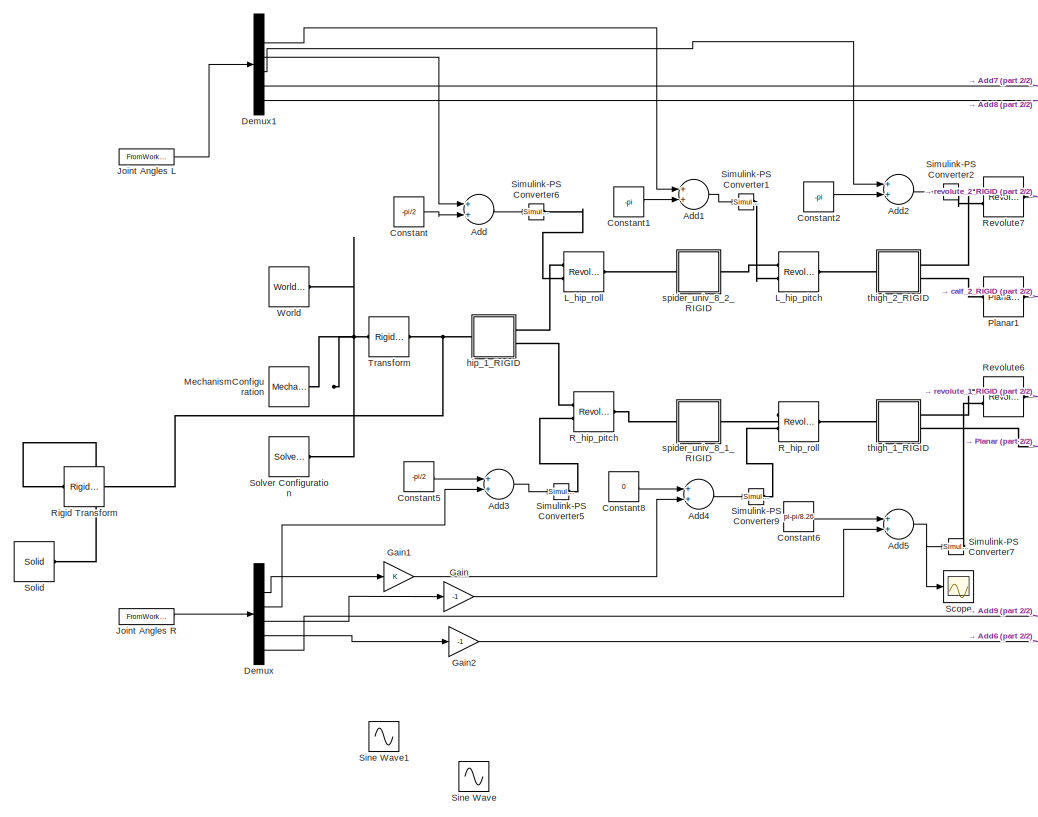
[diagram: root canvas - part 1/2, left side, full height]
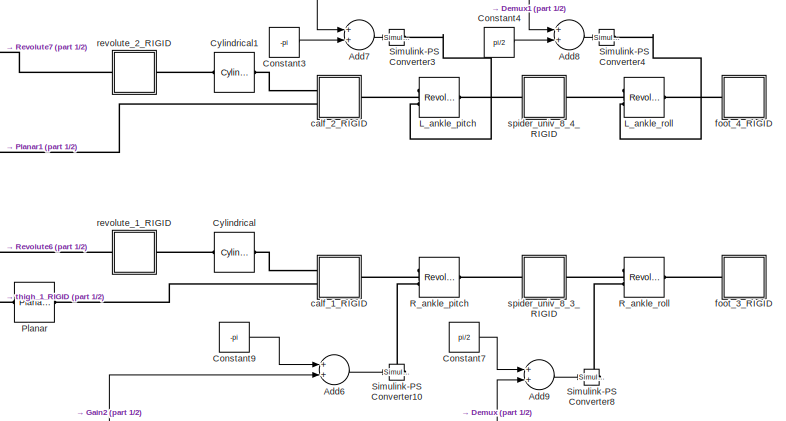
[diagram: root canvas - part 2/2, middle right region]
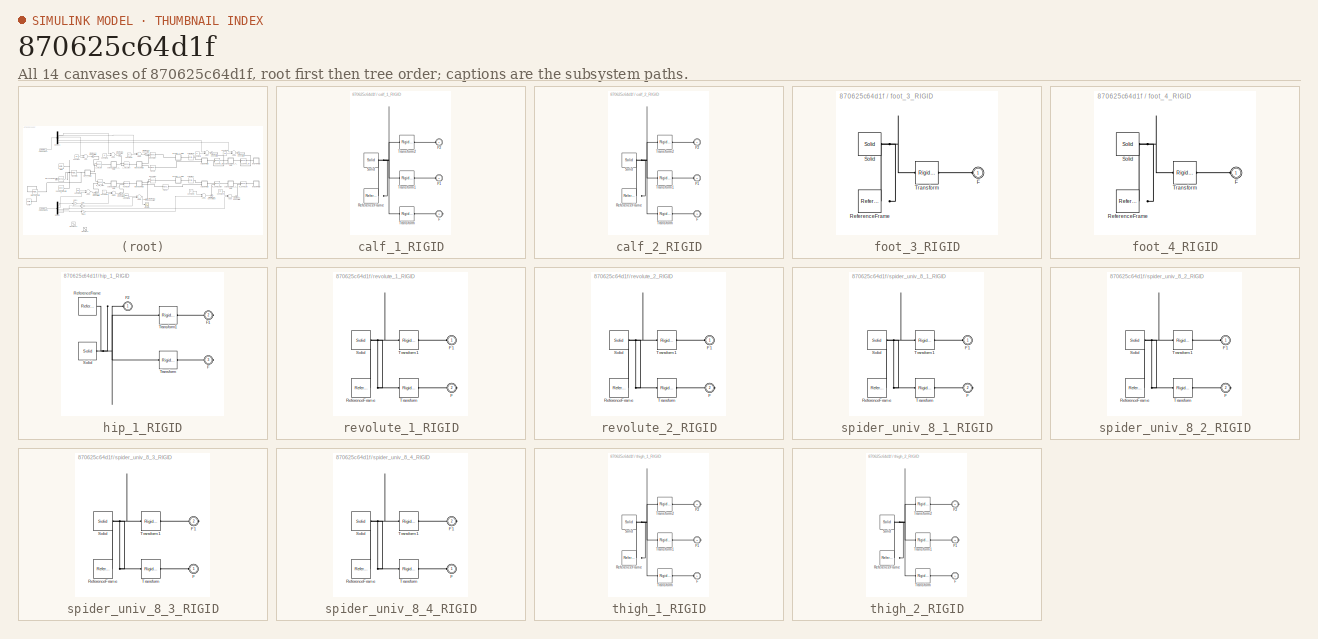
[diagram: thumbnail index - all 14 canvases of the model, root first then tree order]
MODEL slx_870625c64d1f
KIND model
CONFIG AbsTol = auto
CONFIG EnableMultiTasking = off
CONFIG FixedStep = auto
CONFIG MaxStep = auto
CONFIG MinStep = auto
CONFIG RelTol = 1e-3
CONFIG SampleTimeConstraint = Unconstrained
CONFIG Solver = VariableStepAuto
CONFIG SolverName = VariableStepAuto
CONFIG StartTime = 0.0
CONFIG StopTime = 10.0
WORKSPACE source: external: MATLAB File  (data not in archive)
BLOCK [Sum] Add
  InputSameDT = off
  OutDataTypeStr = Inherit: Inherit via internal rule
  Ports = [2, 1]
  SaturateOnIntegerOverflow = off
BLOCK [Sum] Add1
  InputSameDT = off
  OutDataTypeStr = Inherit: Inherit via internal rule
  Ports = [2, 1]
  SaturateOnIntegerOverflow = off
BLOCK [Sum] Add2
  InputSameDT = off
  OutDataTypeStr = Inherit: Inherit via internal rule
  Ports = [2, 1]
  SaturateOnIntegerOverflow = off
BLOCK [Sum] Add3
  InputSameDT = off
  OutDataTypeStr = Inherit: Inherit via internal rule
  Ports = [2, 1]
  SaturateOnIntegerOverflow = off
BLOCK [Sum] Add4
  InputSameDT = off
  OutDataTypeStr = Inherit: Inherit via internal rule
  Ports = [2, 1]
  SaturateOnIntegerOverflow = off
BLOCK [Sum] Add5
  InputSameDT = off
  OutDataTypeStr = Inherit: Inherit via internal rule
  Ports = [2, 1]
  SaturateOnIntegerOverflow = off
BLOCK [Sum] Add6
  InputSameDT = off
  OutDataTypeStr = Inherit: Inherit via internal rule
  Ports = [2, 1]
  SaturateOnIntegerOverflow = off
BLOCK [Sum] Add7
  InputSameDT = off
  OutDataTypeStr = Inherit: Inherit via internal rule
  Ports = [2, 1]
  SaturateOnIntegerOverflow = off
BLOCK [Sum] Add8
  InputSameDT = off
  OutDataTypeStr = Inherit: Inherit via internal rule
  Ports = [2, 1]
  SaturateOnIntegerOverflow = off
BLOCK [Sum] Add9
  InputSameDT = off
  OutDataTypeStr = Inherit: Inherit via internal rule
  Ports = [2, 1]
  SaturateOnIntegerOverflow = off
BLOCK [Constant] Constant
  Value = -pi/2
BLOCK [Constant] Constant1
  Value = -pi
BLOCK [Constant] Constant2
  Value = -pi
BLOCK [Constant] Constant3
  Value = -pi
BLOCK [Constant] Constant4
  Value = pi/2
BLOCK [Constant] Constant5
  Value = -pi/2
BLOCK [Constant] Constant6
  Value = pi-pi/8.26
BLOCK [Constant] Constant7
  Value = pi/2
BLOCK [Constant] Constant8
  Value = 0
BLOCK [Constant] Constant9
  Value = -pi
BLOCK [Reference] Cylindrical  REF=sm_lib/Joints/Cylindrical
Joint
  Ports = [0, 0, 0, 0, 0, 1, 1]
  SourceBlock = sm_lib/Joints/Cylindrical\nJoint
  SourceProductBaseCode = MS
  SourceProductName = Simscape Multibody
  SourceType = Cylindrical\nJoint
BLOCK [Reference] Cylindrical1  REF=sm_lib/Joints/Cylindrical
Joint
  Ports = [0, 0, 0, 0, 0, 1, 1]
  SourceBlock = sm_lib/Joints/Cylindrical\nJoint
  SourceProductBaseCode = MS
  SourceProductName = Simscape Multibody
  SourceType = Cylindrical\nJoint
BLOCK [Demux] Demux
  DisplayOption = bar
  Outputs = 6
  Ports = [1, 6]
BLOCK [Demux] Demux1
  DisplayOption = bar
  Outputs = 6
  Ports = [1, 6]
BLOCK [Gain] Gain
  Gain = -1
  OutDataTypeStr = Inherit: Inherit via internal rule
  ParamDataTypeStr = Inherit: Inherit via internal rule
  SaturateOnIntegerOverflow = off
BLOCK [Gain] Gain1
  OutDataTypeStr = Inherit: Inherit via internal rule
  ParamDataTypeStr = Inherit: Inherit via internal rule
  SaturateOnIntegerOverflow = off
BLOCK [Gain] Gain2
  Gain = -1
  OutDataTypeStr = Inherit: Inherit via internal rule
  ParamDataTypeStr = Inherit: Inherit via internal rule
  SaturateOnIntegerOverflow = off
BLOCK [FromWorkspace] Joint Angles L
  OutputAfterFinalValue = Holding final value
  SampleTime = 0
  VariableName = jAngsL
  ZeroCross = on
BLOCK [FromWorkspace] Joint Angles R
  OutputAfterFinalValue = Holding final value
  SampleTime = 0
  VariableName = jAngsR
  ZeroCross = on
BLOCK [Reference] L_ankle_pitch  REF=sm_lib/Joints/Revolute Joint
  Ports = [0, 0, 0, 0, 0, 2, 1]
  SourceBlock = sm_lib/Joints/Revolute Joint
  SourceProductBaseCode = MS
  SourceProductName = Simscape Multibody
  SourceType = Revolute Joint
BLOCK [Reference] L_ankle_roll  REF=sm_lib/Joints/Revolute Joint
  Ports = [0, 0, 0, 0, 0, 2, 1]
  SourceBlock = sm_lib/Joints/Revolute Joint
  SourceProductBaseCode = MS
  SourceProductName = Simscape Multibody
  SourceType = Revolute Joint
BLOCK [Reference] L_hip_pitch  REF=sm_lib/Joints/Revolute Joint
  Ports = [0, 0, 0, 0, 0, 2, 1]
  SourceBlock = sm_lib/Joints/Revolute Joint
  SourceProductBaseCode = MS
  SourceProductName = Simscape Multibody
  SourceType = Revolute Joint
BLOCK [Reference] L_hip_roll  REF=sm_lib/Joints/Revolute Joint
  Ports = [0, 0, 0, 0, 0, 2, 1]
  SourceBlock = sm_lib/Joints/Revolute Joint
  SourceProductBaseCode = MS
  SourceProductName = Simscape Multibody
  SourceType = Revolute Joint
BLOCK [Reference] MechanismConfiguration  REF=sm_lib/Utilities/Mechanism
Configuration
  Ports = [0, 0, 0, 0, 0, 0, 1]
  SourceBlock = sm_lib/Utilities/Mechanism\nConfiguration
  SourceProductBaseCode = MS
  SourceProductName = Simscape Multibody
  SourceType = Mechanism\nConfiguration
BLOCK [Reference] Planar  REF=sm_lib/Joints/Planar Joint
  Ports = [0, 0, 0, 0, 0, 1, 1]
  SourceBlock = sm_lib/Joints/Planar Joint
  SourceProductBaseCode = MS
  SourceProductName = Simscape Multibody
  SourceType = Planar Joint
BLOCK [Reference] Planar1  REF=sm_lib/Joints/Planar Joint
  Ports = [0, 0, 0, 0, 0, 1, 1]
  SourceBlock = sm_lib/Joints/Planar Joint
  SourceProductBaseCode = MS
  SourceProductName = Simscape Multibody
  SourceType = Planar Joint
BLOCK [Reference] R_ankle_pitch  REF=sm_lib/Joints/Revolute Joint
  Ports = [0, 0, 0, 0, 0, 2, 1]
  SourceBlock = sm_lib/Joints/Revolute Joint
  SourceProductBaseCode = MS
  SourceProductName = Simscape Multibody
  SourceType = Revolute Joint
BLOCK [Reference] R_ankle_roll  REF=sm_lib/Joints/Revolute Joint
  Ports = [0, 0, 0, 0, 0, 2, 1]
  SourceBlock = sm_lib/Joints/Revolute Joint
  SourceProductBaseCode = MS
  SourceProductName = Simscape Multibody
  SourceType = Revolute Joint
BLOCK [Reference] R_hip_pitch  REF=sm_lib/Joints/Revolute Joint
  Ports = [0, 0, 0, 0, 0, 2, 1]
  SourceBlock = sm_lib/Joints/Revolute Joint
  SourceProductBaseCode = MS
  SourceProductName = Simscape Multibody
  SourceType = Revolute Joint
BLOCK [Reference] R_hip_roll  REF=sm_lib/Joints/Revolute Joint
  Ports = [0, 0, 0, 0, 0, 2, 1]
  SourceBlock = sm_lib/Joints/Revolute Joint
  SourceProductBaseCode = MS
  SourceProductName = Simscape Multibody
  SourceType = Revolute Joint
BLOCK [Reference] Revolute6  REF=sm_lib/Joints/Revolute Joint
  Ports = [0, 0, 0, 0, 0, 2, 1]
  SourceBlock = sm_lib/Joints/Revolute Joint
  SourceProductBaseCode = MS
  SourceProductName = Simscape Multibody
  SourceType = Revolute Joint
BLOCK [Reference] Revolute7  REF=sm_lib/Joints/Revolute Joint
  Ports = [0, 0, 0, 0, 0, 2, 1]
  SourceBlock = sm_lib/Joints/Revolute Joint
  SourceProductBaseCode = MS
  SourceProductName = Simscape Multibody
  SourceType = Revolute Joint
BLOCK [Reference] Rigid Transform  REF=sm_lib/Frames and
Transforms/Rigid
Transform
  Ports = [0, 0, 0, 0, 0, 1, 1]
  SourceBlock = sm_lib/Frames and\nTransforms/Rigid\nTransform
  SourceProductBaseCode = MS
  SourceProductName = Simscape Multibody
  SourceType = Rigid\nTransform
BLOCK [Scope] Scope
  Floating = off
  NumInputPorts = 1
  Ports = [1]
  ScopeSpecificationString = Simulink.scopes.TimeScopeBlockCfg('CurrentConfiguration', extmgr.ConfigurationSet(extmgr.Configuration('Core','General UI',true),extmgr.Configuration('Core','Source UI',true),extmgr.Configuration('Sources','WiredSimulink',true),extmgr.Configuration('Visuals','Time Domain',true,'SerializedDisplays',{struct('MinYLimReal','1.1128','MaxYLimReal','2.94442','YLabelReal','','MinYLimMag','1.1128','MaxYLim...<+1350ch>
BLOCK [Reference] Simulink-PS Converter1  REF=nesl_utility/Simulink-PS
Converter
  Ports = [1, 0, 0, 0, 0, 0, 1]
  SourceBlock = nesl_utility/Simulink-PS\nConverter
  SourceProductBaseCode = SS
  SourceProductName = Simscape
  SourceType = Simulink-PS\nConverter
BLOCK [Reference] Simulink-PS Converter10  REF=nesl_utility/Simulink-PS
Converter
  Ports = [1, 0, 0, 0, 0, 0, 1]
  SourceBlock = nesl_utility/Simulink-PS\nConverter
  SourceProductBaseCode = SS
  SourceProductName = Simscape
  SourceType = Simulink-PS\nConverter
BLOCK [Reference] Simulink-PS Converter2  REF=nesl_utility/Simulink-PS
Converter
  Ports = [1, 0, 0, 0, 0, 0, 1]
  SourceBlock = nesl_utility/Simulink-PS\nConverter
  SourceProductBaseCode = SS
  SourceProductName = Simscape
  SourceType = Simulink-PS\nConverter
BLOCK [Reference] Simulink-PS Converter3  REF=nesl_utility/Simulink-PS
Converter
  Ports = [1, 0, 0, 0, 0, 0, 1]
  SourceBlock = nesl_utility/Simulink-PS\nConverter
  SourceProductBaseCode = SS
  SourceProductName = Simscape
  SourceType = Simulink-PS\nConverter
BLOCK [Reference] Simulink-PS Converter4  REF=nesl_utility/Simulink-PS
Converter
  Ports = [1, 0, 0, 0, 0, 0, 1]
  SourceBlock = nesl_utility/Simulink-PS\nConverter
  SourceProductBaseCode = SS
  SourceProductName = Simscape
  SourceType = Simulink-PS\nConverter
BLOCK [Reference] Simulink-PS Converter5  REF=nesl_utility/Simulink-PS
Converter
  Ports = [1, 0, 0, 0, 0, 0, 1]
  SourceBlock = nesl_utility/Simulink-PS\nConverter
  SourceProductBaseCode = SS
  SourceProductName = Simscape
  SourceType = Simulink-PS\nConverter
BLOCK [Reference] Simulink-PS Converter6  REF=nesl_utility/Simulink-PS
Converter
  Ports = [1, 0, 0, 0, 0, 0, 1]
  SourceBlock = nesl_utility/Simulink-PS\nConverter
  SourceProductBaseCode = SS
  SourceProductName = Simscape
  SourceType = Simulink-PS\nConverter
BLOCK [Reference] Simulink-PS Converter7  REF=nesl_utility/Simulink-PS
Converter
  Ports = [1, 0, 0, 0, 0, 0, 1]
  SourceBlock = nesl_utility/Simulink-PS\nConverter
  SourceProductBaseCode = SS
  SourceProductName = Simscape
  SourceType = Simulink-PS\nConverter
BLOCK [Reference] Simulink-PS Converter8  REF=nesl_utility/Simulink-PS
Converter
  Ports = [1, 0, 0, 0, 0, 0, 1]
  SourceBlock = nesl_utility/Simulink-PS\nConverter
  SourceProductBaseCode = SS
  SourceProductName = Simscape
  SourceType = Simulink-PS\nConverter
BLOCK [Reference] Simulink-PS Converter9  REF=nesl_utility/Simulink-PS
Converter
  Ports = [1, 0, 0, 0, 0, 0, 1]
  SourceBlock = nesl_utility/Simulink-PS\nConverter
  SourceProductBaseCode = SS
  SourceProductName = Simscape
  SourceType = Simulink-PS\nConverter
BLOCK [Sin] Sine Wave
  Ports = [0, 1]
  SampleTime = 0
BLOCK [Sin] Sine Wave1
  Phase = pi
  Ports = [0, 1]
  SampleTime = 0
BLOCK [Reference] Solid  REF=sm_lib/Body Elements/Solid
  Ports = [0, 0, 0, 0, 0, 0, 1]
  SourceBlock = sm_lib/Body Elements/Solid
  SourceProductBaseCode = MS
  SourceProductName = Simscape Multibody
  SourceType = Solid
BLOCK [Reference] Solver Configuration  REF=nesl_utility/Solver
Configuration
  Ports = [0, 0, 0, 0, 0, 0, 1]
  SourceBlock = nesl_utility/Solver\nConfiguration
  SourceProductBaseCode = SS
  SourceProductName = Simscape
  SourceType = Solver\nConfiguration
BLOCK [Reference] Transform  REF=sm_lib/Frames and
Transforms/Rigid
Transform
  Ports = [0, 0, 0, 0, 0, 1, 1]
  SourceBlock = sm_lib/Frames and\nTransforms/Rigid\nTransform
  SourceProductBaseCode = MS
  SourceProductName = Simscape Multibody
  SourceType = Rigid\nTransform
BLOCK [Reference] World  REF=sm_lib/Frames and
Transforms/World Frame
  Ports = [0, 0, 0, 0, 0, 0, 1]
  SourceBlock = sm_lib/Frames and\nTransforms/World Frame
  SourceProductBaseCode = MS
  SourceProductName = Simscape Multibody
  SourceType = World Frame
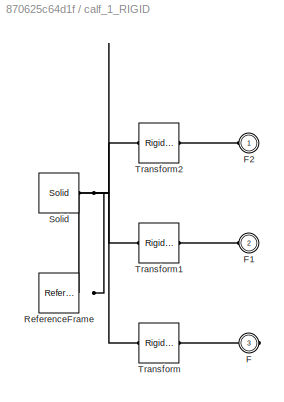
BLOCK [SubSystem] calf_1_RIGID
  Ports = [0, 0, 0, 0, 0, 2, 1]
  RequestExecContextInheritance = off
BLOCK [PMIOPort] calf_1_RIGID/F
  Port = 3
  Side = Right
BLOCK [PMIOPort] calf_1_RIGID/F1
  Port = 2
  Side = Left
BLOCK [PMIOPort] calf_1_RIGID/F2
  Side = Left
BLOCK [Reference] calf_1_RIGID/ReferenceFrame  REF=sm_lib/Frames and
Transforms/Reference
Frame
  Ports = [0, 0, 0, 0, 0, 0, 1]
  SourceBlock = sm_lib/Frames and\nTransforms/Reference\nFrame
  SourceProductBaseCode = MS
  SourceProductName = Simscape Multibody
  SourceType = Reference\nFrame
BLOCK [Reference] calf_1_RIGID/Solid  REF=sm_lib/Body Elements/Solid
  Ports = [0, 0, 0, 0, 0, 0, 1]
  SourceBlock = sm_lib/Body Elements/Solid
  SourceProductBaseCode = MS
  SourceProductName = Simscape Multibody
  SourceType = Solid
BLOCK [Reference] calf_1_RIGID/Transform  REF=sm_lib/Frames and
Transforms/Rigid
Transform
  Ports = [0, 0, 0, 0, 0, 1, 1]
  SourceBlock = sm_lib/Frames and\nTransforms/Rigid\nTransform
  SourceProductBaseCode = MS
  SourceProductName = Simscape Multibody
  SourceType = Rigid\nTransform
BLOCK [Reference] calf_1_RIGID/Transform1  REF=sm_lib/Frames and
Transforms/Rigid
Transform
  Ports = [0, 0, 0, 0, 0, 1, 1]
  SourceBlock = sm_lib/Frames and\nTransforms/Rigid\nTransform
  SourceProductBaseCode = MS
  SourceProductName = Simscape Multibody
  SourceType = Rigid\nTransform
BLOCK [Reference] calf_1_RIGID/Transform2  REF=sm_lib/Frames and
Transforms/Rigid
Transform
  Ports = [0, 0, 0, 0, 0, 1, 1]
  SourceBlock = sm_lib/Frames and\nTransforms/Rigid\nTransform
  SourceProductBaseCode = MS
  SourceProductName = Simscape Multibody
  SourceType = Rigid\nTransform
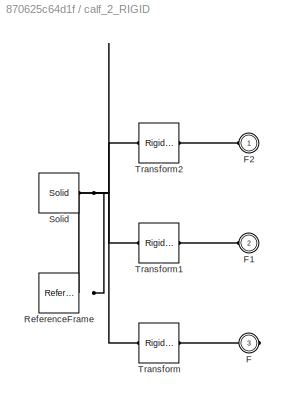
BLOCK [SubSystem] calf_2_RIGID
  Ports = [0, 0, 0, 0, 0, 2, 1]
  RequestExecContextInheritance = off
BLOCK [PMIOPort] calf_2_RIGID/F
  Port = 3
  Side = Right
BLOCK [PMIOPort] calf_2_RIGID/F1
  Port = 2
  Side = Left
BLOCK [PMIOPort] calf_2_RIGID/F2
  Side = Left
BLOCK [Reference] calf_2_RIGID/ReferenceFrame  REF=sm_lib/Frames and
Transforms/Reference
Frame
  Ports = [0, 0, 0, 0, 0, 0, 1]
  SourceBlock = sm_lib/Frames and\nTransforms/Reference\nFrame
  SourceProductBaseCode = MS
  SourceProductName = Simscape Multibody
  SourceType = Reference\nFrame
BLOCK [Reference] calf_2_RIGID/Solid  REF=sm_lib/Body Elements/Solid
  Ports = [0, 0, 0, 0, 0, 0, 1]
  SourceBlock = sm_lib/Body Elements/Solid
  SourceProductBaseCode = MS
  SourceProductName = Simscape Multibody
  SourceType = Solid
BLOCK [Reference] calf_2_RIGID/Transform  REF=sm_lib/Frames and
Transforms/Rigid
Transform
  Ports = [0, 0, 0, 0, 0, 1, 1]
  SourceBlock = sm_lib/Frames and\nTransforms/Rigid\nTransform
  SourceProductBaseCode = MS
  SourceProductName = Simscape Multibody
  SourceType = Rigid\nTransform
BLOCK [Reference] calf_2_RIGID/Transform1  REF=sm_lib/Frames and
Transforms/Rigid
Transform
  Ports = [0, 0, 0, 0, 0, 1, 1]
  SourceBlock = sm_lib/Frames and\nTransforms/Rigid\nTransform
  SourceProductBaseCode = MS
  SourceProductName = Simscape Multibody
  SourceType = Rigid\nTransform
BLOCK [Reference] calf_2_RIGID/Transform2  REF=sm_lib/Frames and
Transforms/Rigid
Transform
  Ports = [0, 0, 0, 0, 0, 1, 1]
  SourceBlock = sm_lib/Frames and\nTransforms/Rigid\nTransform
  SourceProductBaseCode = MS
  SourceProductName = Simscape Multibody
  SourceType = Rigid\nTransform
BLOCK [SubSystem] foot_3_RIGID
  Ports = [0, 0, 0, 0, 0, 1]
  RequestExecContextInheritance = off
BLOCK [PMIOPort] foot_3_RIGID/F
  Side = Left
BLOCK [Reference] foot_3_RIGID/ReferenceFrame  REF=sm_lib/Frames and
Transforms/Reference
Frame
  Ports = [0, 0, 0, 0, 0, 0, 1]
  SourceBlock = sm_lib/Frames and\nTransforms/Reference\nFrame
  SourceProductBaseCode = MS
  SourceProductName = Simscape Multibody
  SourceType = Reference\nFrame
BLOCK [Reference] foot_3_RIGID/Solid  REF=sm_lib/Body Elements/Solid
  Ports = [0, 0, 0, 0, 0, 0, 1]
  SourceBlock = sm_lib/Body Elements/Solid
  SourceProductBaseCode = MS
  SourceProductName = Simscape Multibody
  SourceType = Solid
BLOCK [Reference] foot_3_RIGID/Transform  REF=sm_lib/Frames and
Transforms/Rigid
Transform
  Ports = [0, 0, 0, 0, 0, 1, 1]
  SourceBlock = sm_lib/Frames and\nTransforms/Rigid\nTransform
  SourceProductBaseCode = MS
  SourceProductName = Simscape Multibody
  SourceType = Rigid\nTransform
BLOCK [SubSystem] foot_4_RIGID
  Ports = [0, 0, 0, 0, 0, 1]
  RequestExecContextInheritance = off
BLOCK [PMIOPort] foot_4_RIGID/F
  Side = Left
BLOCK [Reference] foot_4_RIGID/ReferenceFrame  REF=sm_lib/Frames and
Transforms/Reference
Frame
  Ports = [0, 0, 0, 0, 0, 0, 1]
  SourceBlock = sm_lib/Frames and\nTransforms/Reference\nFrame
  SourceProductBaseCode = MS
  SourceProductName = Simscape Multibody
  SourceType = Reference\nFrame
BLOCK [Reference] foot_4_RIGID/Solid  REF=sm_lib/Body Elements/Solid
  Ports = [0, 0, 0, 0, 0, 0, 1]
  SourceBlock = sm_lib/Body Elements/Solid
  SourceProductBaseCode = MS
  SourceProductName = Simscape Multibody
  SourceType = Solid
BLOCK [Reference] foot_4_RIGID/Transform  REF=sm_lib/Frames and
Transforms/Rigid
Transform
  Ports = [0, 0, 0, 0, 0, 1, 1]
  SourceBlock = sm_lib/Frames and\nTransforms/Rigid\nTransform
  SourceProductBaseCode = MS
  SourceProductName = Simscape Multibody
  SourceType = Rigid\nTransform
BLOCK [SubSystem] hip_1_RIGID
  Ports = [0, 0, 0, 0, 0, 1, 2]
  RequestExecContextInheritance = off
BLOCK [PMIOPort] hip_1_RIGID/F
  Port = 3
  Side = Right
BLOCK [PMIOPort] hip_1_RIGID/F1
  Port = 2
  Side = Right
BLOCK [PMIOPort] hip_1_RIGID/F2
  Side = Left
BLOCK [Reference] hip_1_RIGID/ReferenceFrame  REF=sm_lib/Frames and
Transforms/Reference
Frame
  Ports = [0, 0, 0, 0, 0, 0, 1]
  SourceBlock = sm_lib/Frames and\nTransforms/Reference\nFrame
  SourceProductBaseCode = MS
  SourceProductName = Simscape Multibody
  SourceType = Reference\nFrame
BLOCK [Reference] hip_1_RIGID/Solid  REF=sm_lib/Body Elements/Solid
  Ports = [0, 0, 0, 0, 0, 0, 1]
  SourceBlock = sm_lib/Body Elements/Solid
  SourceProductBaseCode = MS
  SourceProductName = Simscape Multibody
  SourceType = Solid
BLOCK [Reference] hip_1_RIGID/Transform  REF=sm_lib/Frames and
Transforms/Rigid
Transform
  Ports = [0, 0, 0, 0, 0, 1, 1]
  SourceBlock = sm_lib/Frames and\nTransforms/Rigid\nTransform
  SourceProductBaseCode = MS
  SourceProductName = Simscape Multibody
  SourceType = Rigid\nTransform
BLOCK [Reference] hip_1_RIGID/Transform1  REF=sm_lib/Frames and
Transforms/Rigid
Transform
  Ports = [0, 0, 0, 0, 0, 1, 1]
  SourceBlock = sm_lib/Frames and\nTransforms/Rigid\nTransform
  SourceProductBaseCode = MS
  SourceProductName = Simscape Multibody
  SourceType = Rigid\nTransform
BLOCK [SubSystem] revolute_1_RIGID
  Ports = [0, 0, 0, 0, 0, 1, 1]
  RequestExecContextInheritance = off
BLOCK [PMIOPort] revolute_1_RIGID/F
  Port = 2
  Side = Right
BLOCK [PMIOPort] revolute_1_RIGID/F1
  Side = Left
BLOCK [Reference] revolute_1_RIGID/ReferenceFrame  REF=sm_lib/Frames and
Transforms/Reference
Frame
  Ports = [0, 0, 0, 0, 0, 0, 1]
  SourceBlock = sm_lib/Frames and\nTransforms/Reference\nFrame
  SourceProductBaseCode = MS
  SourceProductName = Simscape Multibody
  SourceType = Reference\nFrame
BLOCK [Reference] revolute_1_RIGID/Solid  REF=sm_lib/Body Elements/Solid
  Ports = [0, 0, 0, 0, 0, 0, 1]
  SourceBlock = sm_lib/Body Elements/Solid
  SourceProductBaseCode = MS
  SourceProductName = Simscape Multibody
  SourceType = Solid
BLOCK [Reference] revolute_1_RIGID/Transform  REF=sm_lib/Frames and
Transforms/Rigid
Transform
  Ports = [0, 0, 0, 0, 0, 1, 1]
  SourceBlock = sm_lib/Frames and\nTransforms/Rigid\nTransform
  SourceProductBaseCode = MS
  SourceProductName = Simscape Multibody
  SourceType = Rigid\nTransform
BLOCK [Reference] revolute_1_RIGID/Transform1  REF=sm_lib/Frames and
Transforms/Rigid
Transform
  Ports = [0, 0, 0, 0, 0, 1, 1]
  SourceBlock = sm_lib/Frames and\nTransforms/Rigid\nTransform
  SourceProductBaseCode = MS
  SourceProductName = Simscape Multibody
  SourceType = Rigid\nTransform
BLOCK [SubSystem] revolute_2_RIGID
  Ports = [0, 0, 0, 0, 0, 1, 1]
  RequestExecContextInheritance = off
BLOCK [PMIOPort] revolute_2_RIGID/F
  Port = 2
  Side = Right
BLOCK [PMIOPort] revolute_2_RIGID/F1
  Side = Left
BLOCK [Reference] revolute_2_RIGID/ReferenceFrame  REF=sm_lib/Frames and
Transforms/Reference
Frame
  Ports = [0, 0, 0, 0, 0, 0, 1]
  SourceBlock = sm_lib/Frames and\nTransforms/Reference\nFrame
  SourceProductBaseCode = MS
  SourceProductName = Simscape Multibody
  SourceType = Reference\nFrame
BLOCK [Reference] revolute_2_RIGID/Solid  REF=sm_lib/Body Elements/Solid
  Ports = [0, 0, 0, 0, 0, 0, 1]
  SourceBlock = sm_lib/Body Elements/Solid
  SourceProductBaseCode = MS
  SourceProductName = Simscape Multibody
  SourceType = Solid
BLOCK [Reference] revolute_2_RIGID/Transform  REF=sm_lib/Frames and
Transforms/Rigid
Transform
  Ports = [0, 0, 0, 0, 0, 1, 1]
  SourceBlock = sm_lib/Frames and\nTransforms/Rigid\nTransform
  SourceProductBaseCode = MS
  SourceProductName = Simscape Multibody
  SourceType = Rigid\nTransform
BLOCK [Reference] revolute_2_RIGID/Transform1  REF=sm_lib/Frames and
Transforms/Rigid
Transform
  Ports = [0, 0, 0, 0, 0, 1, 1]
  SourceBlock = sm_lib/Frames and\nTransforms/Rigid\nTransform
  SourceProductBaseCode = MS
  SourceProductName = Simscape Multibody
  SourceType = Rigid\nTransform
BLOCK [SubSystem] spider_univ_8_1_RIGID
  Ports = [0, 0, 0, 0, 0, 1, 1]
  RequestExecContextInheritance = off
BLOCK [PMIOPort] spider_univ_8_1_RIGID/F
  Port = 2
  Side = Right
BLOCK [PMIOPort] spider_univ_8_1_RIGID/F1
  Side = Left
BLOCK [Reference] spider_univ_8_1_RIGID/ReferenceFrame  REF=sm_lib/Frames and
Transforms/Reference
Frame
  Ports = [0, 0, 0, 0, 0, 0, 1]
  SourceBlock = sm_lib/Frames and\nTransforms/Reference\nFrame
  SourceProductBaseCode = MS
  SourceProductName = Simscape Multibody
  SourceType = Reference\nFrame
BLOCK [Reference] spider_univ_8_1_RIGID/Solid  REF=sm_lib/Body Elements/Solid
  Ports = [0, 0, 0, 0, 0, 0, 1]
  SourceBlock = sm_lib/Body Elements/Solid
  SourceProductBaseCode = MS
  SourceProductName = Simscape Multibody
  SourceType = Solid
BLOCK [Reference] spider_univ_8_1_RIGID/Transform  REF=sm_lib/Frames and
Transforms/Rigid
Transform
  Ports = [0, 0, 0, 0, 0, 1, 1]
  SourceBlock = sm_lib/Frames and\nTransforms/Rigid\nTransform
  SourceProductBaseCode = MS
  SourceProductName = Simscape Multibody
  SourceType = Rigid\nTransform
BLOCK [Reference] spider_univ_8_1_RIGID/Transform1  REF=sm_lib/Frames and
Transforms/Rigid
Transform
  Ports = [0, 0, 0, 0, 0, 1, 1]
  SourceBlock = sm_lib/Frames and\nTransforms/Rigid\nTransform
  SourceProductBaseCode = MS
  SourceProductName = Simscape Multibody
  SourceType = Rigid\nTransform
BLOCK [SubSystem] spider_univ_8_2_RIGID
  Ports = [0, 0, 0, 0, 0, 1, 1]
  RequestExecContextInheritance = off
BLOCK [PMIOPort] spider_univ_8_2_RIGID/F
  Port = 2
  Side = Right
BLOCK [PMIOPort] spider_univ_8_2_RIGID/F1
  Side = Left
BLOCK [Reference] spider_univ_8_2_RIGID/ReferenceFrame  REF=sm_lib/Frames and
Transforms/Reference
Frame
  Ports = [0, 0, 0, 0, 0, 0, 1]
  SourceBlock = sm_lib/Frames and\nTransforms/Reference\nFrame
  SourceProductBaseCode = MS
  SourceProductName = Simscape Multibody
  SourceType = Reference\nFrame
BLOCK [Reference] spider_univ_8_2_RIGID/Solid  REF=sm_lib/Body Elements/Solid
  Ports = [0, 0, 0, 0, 0, 0, 1]
  SourceBlock = sm_lib/Body Elements/Solid
  SourceProductBaseCode = MS
  SourceProductName = Simscape Multibody
  SourceType = Solid
BLOCK [Reference] spider_univ_8_2_RIGID/Transform  REF=sm_lib/Frames and
Transforms/Rigid
Transform
  Ports = [0, 0, 0, 0, 0, 1, 1]
  SourceBlock = sm_lib/Frames and\nTransforms/Rigid\nTransform
  SourceProductBaseCode = MS
  SourceProductName = Simscape Multibody
  SourceType = Rigid\nTransform
BLOCK [Reference] spider_univ_8_2_RIGID/Transform1  REF=sm_lib/Frames and
Transforms/Rigid
Transform
  Ports = [0, 0, 0, 0, 0, 1, 1]
  SourceBlock = sm_lib/Frames and\nTransforms/Rigid\nTransform
  SourceProductBaseCode = MS
  SourceProductName = Simscape Multibody
  SourceType = Rigid\nTransform
BLOCK [SubSystem] spider_univ_8_3_RIGID
  Ports = [0, 0, 0, 0, 0, 1, 1]
  RequestExecContextInheritance = off
BLOCK [PMIOPort] spider_univ_8_3_RIGID/F
  Side = Left
BLOCK [PMIOPort] spider_univ_8_3_RIGID/F1
  Port = 2
  Side = Right
BLOCK [Reference] spider_univ_8_3_RIGID/ReferenceFrame  REF=sm_lib/Frames and
Transforms/Reference
Frame
  Ports = [0, 0, 0, 0, 0, 0, 1]
  SourceBlock = sm_lib/Frames and\nTransforms/Reference\nFrame
  SourceProductBaseCode = MS
  SourceProductName = Simscape Multibody
  SourceType = Reference\nFrame
BLOCK [Reference] spider_univ_8_3_RIGID/Solid  REF=sm_lib/Body Elements/Solid
  Ports = [0, 0, 0, 0, 0, 0, 1]
  SourceBlock = sm_lib/Body Elements/Solid
  SourceProductBaseCode = MS
  SourceProductName = Simscape Multibody
  SourceType = Solid
BLOCK [Reference] spider_univ_8_3_RIGID/Transform  REF=sm_lib/Frames and
Transforms/Rigid
Transform
  Ports = [0, 0, 0, 0, 0, 1, 1]
  SourceBlock = sm_lib/Frames and\nTransforms/Rigid\nTransform
  SourceProductBaseCode = MS
  SourceProductName = Simscape Multibody
  SourceType = Rigid\nTransform
BLOCK [Reference] spider_univ_8_3_RIGID/Transform1  REF=sm_lib/Frames and
Transforms/Rigid
Transform
  Ports = [0, 0, 0, 0, 0, 1, 1]
  SourceBlock = sm_lib/Frames and\nTransforms/Rigid\nTransform
  SourceProductBaseCode = MS
  SourceProductName = Simscape Multibody
  SourceType = Rigid\nTransform
BLOCK [SubSystem] spider_univ_8_4_RIGID
  Ports = [0, 0, 0, 0, 0, 1, 1]
  RequestExecContextInheritance = off
BLOCK [PMIOPort] spider_univ_8_4_RIGID/F
  Side = Left
BLOCK [PMIOPort] spider_univ_8_4_RIGID/F1
  Port = 2
  Side = Right
BLOCK [Reference] spider_univ_8_4_RIGID/ReferenceFrame  REF=sm_lib/Frames and
Transforms/Reference
Frame
  Ports = [0, 0, 0, 0, 0, 0, 1]
  SourceBlock = sm_lib/Frames and\nTransforms/Reference\nFrame
  SourceProductBaseCode = MS
  SourceProductName = Simscape Multibody
  SourceType = Reference\nFrame
BLOCK [Reference] spider_univ_8_4_RIGID/Solid  REF=sm_lib/Body Elements/Solid
  Ports = [0, 0, 0, 0, 0, 0, 1]
  SourceBlock = sm_lib/Body Elements/Solid
  SourceProductBaseCode = MS
  SourceProductName = Simscape Multibody
  SourceType = Solid
BLOCK [Reference] spider_univ_8_4_RIGID/Transform  REF=sm_lib/Frames and
Transforms/Rigid
Transform
  Ports = [0, 0, 0, 0, 0, 1, 1]
  SourceBlock = sm_lib/Frames and\nTransforms/Rigid\nTransform
  SourceProductBaseCode = MS
  SourceProductName = Simscape Multibody
  SourceType = Rigid\nTransform
BLOCK [Reference] spider_univ_8_4_RIGID/Transform1  REF=sm_lib/Frames and
Transforms/Rigid
Transform
  Ports = [0, 0, 0, 0, 0, 1, 1]
  SourceBlock = sm_lib/Frames and\nTransforms/Rigid\nTransform
  SourceProductBaseCode = MS
  SourceProductName = Simscape Multibody
  SourceType = Rigid\nTransform
BLOCK [SubSystem] thigh_1_RIGID
  Ports = [0, 0, 0, 0, 0, 1, 2]
  RequestExecContextInheritance = off
BLOCK [PMIOPort] thigh_1_RIGID/F
  Side = Left
BLOCK [PMIOPort] thigh_1_RIGID/F1
  Port = 3
  Side = Right
BLOCK [PMIOPort] thigh_1_RIGID/F2
  Port = 2
  Side = Right
BLOCK [Reference] thigh_1_RIGID/ReferenceFrame  REF=sm_lib/Frames and
Transforms/Reference
Frame
  Ports = [0, 0, 0, 0, 0, 0, 1]
  SourceBlock = sm_lib/Frames and\nTransforms/Reference\nFrame
  SourceProductBaseCode = MS
  SourceProductName = Simscape Multibody
  SourceType = Reference\nFrame
BLOCK [Reference] thigh_1_RIGID/Solid  REF=sm_lib/Body Elements/Solid
  Ports = [0, 0, 0, 0, 0, 0, 1]
  SourceBlock = sm_lib/Body Elements/Solid
  SourceProductBaseCode = MS
  SourceProductName = Simscape Multibody
  SourceType = Solid
BLOCK [Reference] thigh_1_RIGID/Transform  REF=sm_lib/Frames and
Transforms/Rigid
Transform
  Ports = [0, 0, 0, 0, 0, 1, 1]
  SourceBlock = sm_lib/Frames and\nTransforms/Rigid\nTransform
  SourceProductBaseCode = MS
  SourceProductName = Simscape Multibody
  SourceType = Rigid\nTransform
BLOCK [Reference] thigh_1_RIGID/Transform1  REF=sm_lib/Frames and
Transforms/Rigid
Transform
  Ports = [0, 0, 0, 0, 0, 1, 1]
  SourceBlock = sm_lib/Frames and\nTransforms/Rigid\nTransform
  SourceProductBaseCode = MS
  SourceProductName = Simscape Multibody
  SourceType = Rigid\nTransform
BLOCK [Reference] thigh_1_RIGID/Transform2  REF=sm_lib/Frames and
Transforms/Rigid
Transform
  Ports = [0, 0, 0, 0, 0, 1, 1]
  SourceBlock = sm_lib/Frames and\nTransforms/Rigid\nTransform
  SourceProductBaseCode = MS
  SourceProductName = Simscape Multibody
  SourceType = Rigid\nTransform
BLOCK [SubSystem] thigh_2_RIGID
  Ports = [0, 0, 0, 0, 0, 1, 2]
  RequestExecContextInheritance = off
BLOCK [PMIOPort] thigh_2_RIGID/F
  Side = Left
BLOCK [PMIOPort] thigh_2_RIGID/F1
  Port = 3
  Side = Right
BLOCK [PMIOPort] thigh_2_RIGID/F2
  Port = 2
  Side = Right
BLOCK [Reference] thigh_2_RIGID/ReferenceFrame  REF=sm_lib/Frames and
Transforms/Reference
Frame
  Ports = [0, 0, 0, 0, 0, 0, 1]
  SourceBlock = sm_lib/Frames and\nTransforms/Reference\nFrame
  SourceProductBaseCode = MS
  SourceProductName = Simscape Multibody
  SourceType = Reference\nFrame
BLOCK [Reference] thigh_2_RIGID/Solid  REF=sm_lib/Body Elements/Solid
  Ports = [0, 0, 0, 0, 0, 0, 1]
  SourceBlock = sm_lib/Body Elements/Solid
  SourceProductBaseCode = MS
  SourceProductName = Simscape Multibody
  SourceType = Solid
BLOCK [Reference] thigh_2_RIGID/Transform  REF=sm_lib/Frames and
Transforms/Rigid
Transform
  Ports = [0, 0, 0, 0, 0, 1, 1]
  SourceBlock = sm_lib/Frames and\nTransforms/Rigid\nTransform
  SourceProductBaseCode = MS
  SourceProductName = Simscape Multibody
  SourceType = Rigid\nTransform
BLOCK [Reference] thigh_2_RIGID/Transform1  REF=sm_lib/Frames and
Transforms/Rigid
Transform
  Ports = [0, 0, 0, 0, 0, 1, 1]
  SourceBlock = sm_lib/Frames and\nTransforms/Rigid\nTransform
  SourceProductBaseCode = MS
  SourceProductName = Simscape Multibody
  SourceType = Rigid\nTransform
BLOCK [Reference] thigh_2_RIGID/Transform2  REF=sm_lib/Frames and
Transforms/Rigid
Transform
  Ports = [0, 0, 0, 0, 0, 1, 1]
  SourceBlock = sm_lib/Frames and\nTransforms/Rigid\nTransform
  SourceProductBaseCode = MS
  SourceProductName = Simscape Multibody
  SourceType = Rigid\nTransform
LINE Add1:1 -> Simulink-PS Converter1:1
LINE Add2:1 -> Simulink-PS Converter2:1
LINE Add3:1 -> Simulink-PS Converter5:1
LINE Add4:1 -> Simulink-PS Converter9:1
NET Add5:1 -> Scope:1, Simulink-PS Converter7:1
LINE Add6:1 -> Simulink-PS Converter10:1
LINE Add7:1 -> Simulink-PS Converter3:1
LINE Add8:1 -> Simulink-PS Converter4:1
LINE Add9:1 -> Simulink-PS Converter8:1
LINE Add:1 -> Simulink-PS Converter6:1
LINE Constant1:1 -> Add1:2
LINE Constant2:1 -> Add2:2
LINE Constant3:1 -> Add7:2
LINE Constant4:1 -> Add8:2
LINE Constant5:1 -> Add3:1
LINE Constant6:1 -> Add5:1
LINE Constant7:1 -> Add9:1
LINE Constant8:1 -> Add4:1
LINE Constant9:1 -> Add6:1
LINE Constant:1 -> Add:2
LINE Demux1:2 -> Add1:1
LINE Demux1:3 -> Add:1
LINE Demux1:4 -> Add2:1
LINE Demux1:5 -> Add7:1
LINE Demux1:6 -> Add8:1
LINE Demux:2 -> Gain1:1
LINE Demux:3 -> Add3:2
LINE Demux:4 -> Gain:1
LINE Demux:5 -> Gain2:1
LINE Demux:6 -> Add9:2
LINE Gain1:1 -> Add4:2
LINE Gain2:1 -> Add6:2
LINE Gain:1 -> Add5:2
LINE Joint Angles L:1 -> Demux1:1
LINE Joint Angles R:1 -> Demux:1
PLINE Cylindrical1:LConn1 -- revolute_2_RIGID:RConn1
PLINE Cylindrical1:RConn1 -- calf_2_RIGID:LConn1
PLINE Cylindrical:LConn1 -- revolute_1_RIGID:RConn1
PLINE Cylindrical:RConn1 -- calf_1_RIGID:LConn1
PLINE L_ankle_pitch:LConn1 -- calf_2_RIGID:RConn1
PLINE L_ankle_pitch:LConn2 -- Simulink-PS Converter3:RConn1
PLINE L_ankle_pitch:RConn1 -- spider_univ_8_4_RIGID:LConn1
PLINE L_ankle_roll:LConn1 -- spider_univ_8_4_RIGID:RConn1
PLINE L_ankle_roll:LConn2 -- Simulink-PS Converter4:RConn1
PLINE L_ankle_roll:RConn1 -- foot_4_RIGID:LConn1
PLINE L_hip_pitch:LConn1 -- spider_univ_8_2_RIGID:RConn1
PLINE L_hip_pitch:LConn2 -- Simulink-PS Converter1:RConn1
PLINE L_hip_pitch:RConn1 -- thigh_2_RIGID:LConn1
PLINE L_hip_roll:LConn1 -- hip_1_RIGID:RConn1
PLINE L_hip_roll:LConn2 -- Simulink-PS Converter6:RConn1
PLINE L_hip_roll:RConn1 -- spider_univ_8_2_RIGID:LConn1
PNET net1: MechanismConfiguration:RConn1 -- Solver Configuration:RConn1 -- Transform:LConn1 -- World:RConn1
PLINE Planar1:LConn1 -- thigh_2_RIGID:RConn2
PLINE Planar1:RConn1 -- calf_2_RIGID:LConn2
PLINE Planar:LConn1 -- thigh_1_RIGID:RConn2
PLINE Planar:RConn1 -- calf_1_RIGID:LConn2
PLINE R_ankle_pitch:LConn1 -- calf_1_RIGID:RConn1
PLINE R_ankle_pitch:LConn2 -- Simulink-PS Converter10:RConn1
PLINE R_ankle_pitch:RConn1 -- spider_univ_8_3_RIGID:LConn1
PLINE R_ankle_roll:LConn1 -- spider_univ_8_3_RIGID:RConn1
PLINE R_ankle_roll:LConn2 -- Simulink-PS Converter8:RConn1
PLINE R_ankle_roll:RConn1 -- foot_3_RIGID:LConn1
PLINE R_hip_pitch:LConn1 -- hip_1_RIGID:RConn2
PLINE R_hip_pitch:LConn2 -- Simulink-PS Converter5:RConn1
PLINE R_hip_pitch:RConn1 -- spider_univ_8_1_RIGID:LConn1
PLINE R_hip_roll:LConn1 -- spider_univ_8_1_RIGID:RConn1
PLINE R_hip_roll:LConn2 -- Simulink-PS Converter9:RConn1
PLINE R_hip_roll:RConn1 -- thigh_1_RIGID:LConn1
PLINE Revolute6:LConn1 -- thigh_1_RIGID:RConn1
PLINE Revolute6:LConn2 -- Simulink-PS Converter7:RConn1
PLINE Revolute6:RConn1 -- revolute_1_RIGID:LConn1
PLINE Revolute7:LConn1 -- thigh_2_RIGID:RConn1
PLINE Revolute7:LConn2 -- Simulink-PS Converter2:RConn1
PLINE Revolute7:RConn1 -- revolute_2_RIGID:LConn1
PLINE Rigid Transform:LConn1 -- Solid:RConn1
PNET net2: Rigid Transform:RConn1 -- Transform:RConn1 -- hip_1_RIGID:LConn1
PLINE calf_1_RIGID/F1:RConn1 -- calf_1_RIGID/Transform1:RConn1
PLINE calf_1_RIGID/F2:RConn1 -- calf_1_RIGID/Transform2:RConn1
PLINE calf_1_RIGID/F:RConn1 -- calf_1_RIGID/Transform:RConn1
PNET net3: calf_1_RIGID/ReferenceFrame:RConn1 -- calf_1_RIGID/Solid:RConn1 -- calf_1_RIGID/Transform1:LConn1 -- calf_1_RIGID/Transform2:LConn1 -- calf_1_RIGID/Transform:LConn1
PLINE calf_2_RIGID/F1:RConn1 -- calf_2_RIGID/Transform1:RConn1
PLINE calf_2_RIGID/F2:RConn1 -- calf_2_RIGID/Transform2:RConn1
PLINE calf_2_RIGID/F:RConn1 -- calf_2_RIGID/Transform:RConn1
PNET net4: calf_2_RIGID/ReferenceFrame:RConn1 -- calf_2_RIGID/Solid:RConn1 -- calf_2_RIGID/Transform1:LConn1 -- calf_2_RIGID/Transform2:LConn1 -- calf_2_RIGID/Transform:LConn1
PLINE foot_3_RIGID/F:RConn1 -- foot_3_RIGID/Transform:RConn1
PNET net5: foot_3_RIGID/ReferenceFrame:RConn1 -- foot_3_RIGID/Solid:RConn1 -- foot_3_RIGID/Transform:LConn1
PLINE foot_4_RIGID/F:RConn1 -- foot_4_RIGID/Transform:RConn1
PNET net6: foot_4_RIGID/ReferenceFrame:RConn1 -- foot_4_RIGID/Solid:RConn1 -- foot_4_RIGID/Transform:LConn1
PLINE hip_1_RIGID/F1:RConn1 -- hip_1_RIGID/Transform1:RConn1
PNET net7: hip_1_RIGID/F2:RConn1 -- hip_1_RIGID/ReferenceFrame:RConn1 -- hip_1_RIGID/Solid:RConn1 -- hip_1_RIGID/Transform1:LConn1 -- hip_1_RIGID/Transform:LConn1
PLINE hip_1_RIGID/F:RConn1 -- hip_1_RIGID/Transform:RConn1
PLINE revolute_1_RIGID/F1:RConn1 -- revolute_1_RIGID/Transform1:RConn1
PLINE revolute_1_RIGID/F:RConn1 -- revolute_1_RIGID/Transform:RConn1
PNET net8: revolute_1_RIGID/ReferenceFrame:RConn1 -- revolute_1_RIGID/Solid:RConn1 -- revolute_1_RIGID/Transform1:LConn1 -- revolute_1_RIGID/Transform:LConn1
PLINE revolute_2_RIGID/F1:RConn1 -- revolute_2_RIGID/Transform1:RConn1
PLINE revolute_2_RIGID/F:RConn1 -- revolute_2_RIGID/Transform:RConn1
PNET net9: revolute_2_RIGID/ReferenceFrame:RConn1 -- revolute_2_RIGID/Solid:RConn1 -- revolute_2_RIGID/Transform1:LConn1 -- revolute_2_RIGID/Transform:LConn1
PLINE spider_univ_8_1_RIGID/F1:RConn1 -- spider_univ_8_1_RIGID/Transform1:RConn1
PLINE spider_univ_8_1_RIGID/F:RConn1 -- spider_univ_8_1_RIGID/Transform:RConn1
PNET net10: spider_univ_8_1_RIGID/ReferenceFrame:RConn1 -- spider_univ_8_1_RIGID/Solid:RConn1 -- spider_univ_8_1_RIGID/Transform1:LConn1 -- spider_univ_8_1_RIGID/Transform:LConn1
PLINE spider_univ_8_2_RIGID/F1:RConn1 -- spider_univ_8_2_RIGID/Transform1:RConn1
PLINE spider_univ_8_2_RIGID/F:RConn1 -- spider_univ_8_2_RIGID/Transform:RConn1
PNET net11: spider_univ_8_2_RIGID/ReferenceFrame:RConn1 -- spider_univ_8_2_RIGID/Solid:RConn1 -- spider_univ_8_2_RIGID/Transform1:LConn1 -- spider_univ_8_2_RIGID/Transform:LConn1
PLINE spider_univ_8_3_RIGID/F1:RConn1 -- spider_univ_8_3_RIGID/Transform1:RConn1
PLINE spider_univ_8_3_RIGID/F:RConn1 -- spider_univ_8_3_RIGID/Transform:RConn1
PNET net12: spider_univ_8_3_RIGID/ReferenceFrame:RConn1 -- spider_univ_8_3_RIGID/Solid:RConn1 -- spider_univ_8_3_RIGID/Transform1:LConn1 -- spider_univ_8_3_RIGID/Transform:LConn1
PLINE spider_univ_8_4_RIGID/F1:RConn1 -- spider_univ_8_4_RIGID/Transform1:RConn1
PLINE spider_univ_8_4_RIGID/F:RConn1 -- spider_univ_8_4_RIGID/Transform:RConn1
PNET net13: spider_univ_8_4_RIGID/ReferenceFrame:RConn1 -- spider_univ_8_4_RIGID/Solid:RConn1 -- spider_univ_8_4_RIGID/Transform1:LConn1 -- spider_univ_8_4_RIGID/Transform:LConn1
PLINE thigh_1_RIGID/F1:RConn1 -- thigh_1_RIGID/Transform1:RConn1
PLINE thigh_1_RIGID/F2:RConn1 -- thigh_1_RIGID/Transform2:RConn1
PLINE thigh_1_RIGID/F:RConn1 -- thigh_1_RIGID/Transform:RConn1
PNET net14: thigh_1_RIGID/ReferenceFrame:RConn1 -- thigh_1_RIGID/Solid:RConn1 -- thigh_1_RIGID/Transform1:LConn1 -- thigh_1_RIGID/Transform2:LConn1 -- thigh_1_RIGID/Transform:LConn1
PLINE thigh_2_RIGID/F1:RConn1 -- thigh_2_RIGID/Transform1:RConn1
PLINE thigh_2_RIGID/F2:RConn1 -- thigh_2_RIGID/Transform2:RConn1
PLINE thigh_2_RIGID/F:RConn1 -- thigh_2_RIGID/Transform:RConn1
PNET net15: thigh_2_RIGID/ReferenceFrame:RConn1 -- thigh_2_RIGID/Solid:RConn1 -- thigh_2_RIGID/Transform1:LConn1 -- thigh_2_RIGID/Transform2:LConn1 -- thigh_2_RIGID/Transform:LConn1
note: NET lines group one-source signal fan-out (src -> all destinations, sorted); 1:1 wires keep LINE; PNET lines group multi-terminal physical nets as a canonical sorted terminal list (undirected conserving connections); 2-terminal nets keep the pairwise PLINE form
